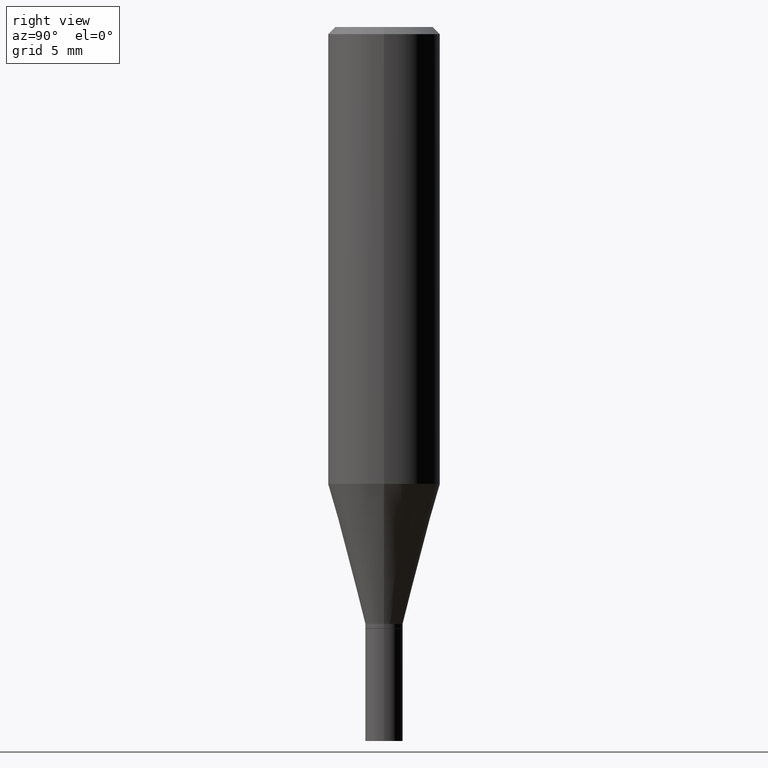
[diagram: clean part render]
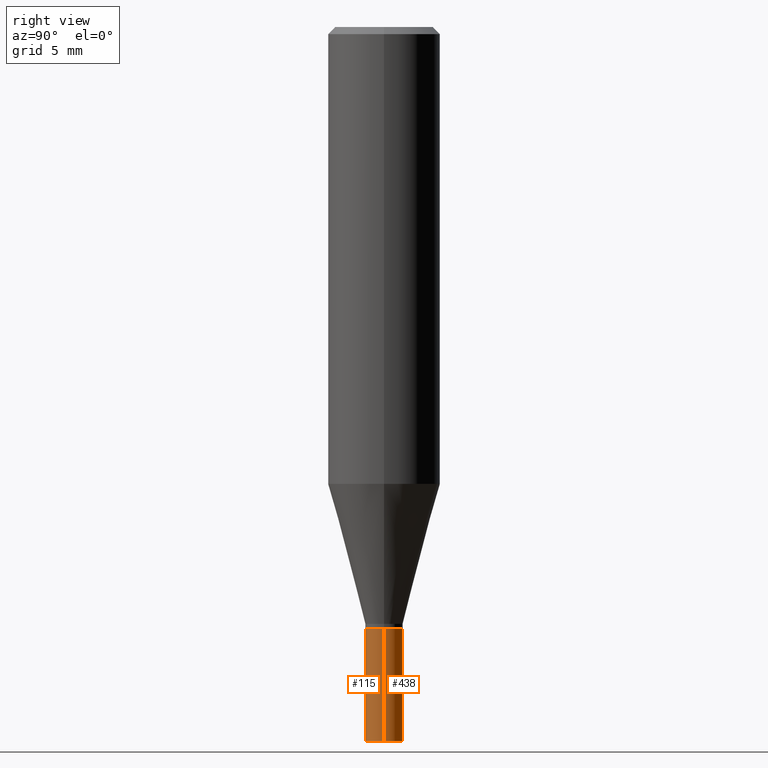
[diagram: same view with one multi-face feature highlighted, each face labeled with its STEP entity id]
A machine part, right view. The highlighted faces form ONE feature: a constant-radius fillet chain: 2 tangent blend faces with common blend radius 0.9995 mm. The faces share edges in the B-rep.
Their STEP definitions:
[1] entity #438 (Cylinder):
#26 = VECTOR ( 'NONE', #331, 39.37007874015748143 ) ;
#28 = EDGE_CURVE ( 'NONE', #131, #389, #71, .T. ) ;
#30 = DIRECTION ( 'NONE',  ( -2.445468806185136597E-29, 3.491481338843145583E-15, 1.000000000000000000 ) ) ;
#41 = CARTESIAN_POINT ( 'NONE',  ( 0.03935000000000000303, -4.687313697396922464E-15, -1.263800000000000034 ) ) ;
#45 = CARTESIAN_POINT ( 'NONE',  ( -0.03935000000000000303, -4.545279495625743861E-15, -1.500000000000000222 ) ) ;
#50 = LINE ( 'NONE', #231, #26 ) ;
#61 = CARTESIAN_POINT ( 'NONE',  ( 0.000000000000000000, 0.000000000000000000, 0.000000000000000000 ) ) ;
#62 = AXIS2_PLACEMENT_3D ( 'NONE', #194, #269, #302 ) ;
#71 = LINE ( 'NONE', #441, #283 ) ;
#73 = DIRECTION ( 'NONE',  ( -2.445468806185136877E-29, 3.491481338843145188E-15, 1.000000000000000000 ) ) ;
#107 = CIRCLE ( 'NONE', #62, 0.03935000000000000303 ) ;
#113 = AXIS2_PLACEMENT_3D ( 'NONE', #170, #314, #139 ) ;
#119 = VERTEX_POINT ( 'NONE', #227 ) ;
#131 = VERTEX_POINT ( 'NONE', #45 ) ;
#136 = DIRECTION ( 'NONE',  ( 1.000000000000000000, -6.982962677686266711E-15, 4.876176775795936353E-29 ) ) ;
#139 = DIRECTION ( 'NONE',  ( 1.000000000000000000, -6.982962677686269077E-15, 0.000000000000000000 ) ) ;
#140 = VERTEX_POINT ( 'NONE', #41 ) ;
#148 = ORIENTED_EDGE ( 'NONE', *, *, #295, .T. ) ;
#170 = CARTESIAN_POINT ( 'NONE',  ( 3.090583477256776013E-29, -4.412534116029967548E-15, -1.263800000000000034 ) ) ;
#193 = EDGE_CURVE ( 'NONE', #140, #389, #323, .T. ) ;
#194 = CARTESIAN_POINT ( 'NONE',  ( 3.668203209277704895E-29, -5.237222008264718177E-15, -1.500000000000000222 ) ) ;
#227 = CARTESIAN_POINT ( 'NONE',  ( 0.03935000000000000303, -5.512001589631673094E-15, -1.500000000000000222 ) ) ;
#231 = CARTESIAN_POINT ( 'NONE',  ( 0.03935000000000000303, -2.747795813669546211E-16, 1.918775561275701074E-30 ) ) ;
#269 = DIRECTION ( 'NONE',  ( -2.445468806185136597E-29, 3.491481338843145583E-15, 1.000000000000000000 ) ) ;
#276 = FACE_OUTER_BOUND ( 'NONE', #308, .T. ) ;
#283 = VECTOR ( 'NONE', #73, 39.37007874015748143 ) ;
#295 = EDGE_CURVE ( 'NONE', #119, #131, #107, .T. ) ;
#296 = ORIENTED_EDGE ( 'NONE', *, *, #376, .F. ) ;
#302 = DIRECTION ( 'NONE',  ( 1.000000000000000000, -6.982962677686269077E-15, 0.000000000000000000 ) ) ;
#308 = EDGE_LOOP ( 'NONE', ( #148, #461, #410, #296 ) ) ;
#314 = DIRECTION ( 'NONE',  ( -2.445468806185136597E-29, 3.491481338843145583E-15, 1.000000000000000000 ) ) ;
#323 = CIRCLE ( 'NONE', #113, 0.03935000000000000303 ) ;
#331 = DIRECTION ( 'NONE',  ( -2.445468806185136877E-29, 3.491481338843145188E-15, 1.000000000000000000 ) ) ;
#332 = AXIS2_PLACEMENT_3D ( 'NONE', #61, #30, #136 ) ;
#376 = EDGE_CURVE ( 'NONE', #119, #140, #50, .T. ) ;
#389 = VERTEX_POINT ( 'NONE', #449 ) ;
#410 = ORIENTED_EDGE ( 'NONE', *, *, #193, .F. ) ;
#438 = ADVANCED_FACE ( 'NONE', ( #276 ), #465, .T. ) ;
#441 = CARTESIAN_POINT ( 'NONE',  ( -0.03935000000000000303, 2.795985665215994447E-16, -1.935600958015305291E-30 ) ) ;
#449 = CARTESIAN_POINT ( 'NONE',  ( -0.03935000000000000303, -4.545279495625743861E-15, -1.263800000000000034 ) ) ;
#461 = ORIENTED_EDGE ( 'NONE', *, *, #28, .T. ) ;
#465 = CYLINDRICAL_SURFACE ( 'NONE', #332, 0.03935000000000000303 ) ;
[2] entity #115 (Cylinder):
#16 = CIRCLE ( 'NONE', #329, 0.03935000000000000303 ) ;
#26 = VECTOR ( 'NONE', #331, 39.37007874015748143 ) ;
#28 = EDGE_CURVE ( 'NONE', #131, #389, #71, .T. ) ;
#41 = CARTESIAN_POINT ( 'NONE',  ( 0.03935000000000000303, -4.687313697396922464E-15, -1.263800000000000034 ) ) ;
#45 = CARTESIAN_POINT ( 'NONE',  ( -0.03935000000000000303, -4.545279495625743861E-15, -1.500000000000000222 ) ) ;
#49 = ORIENTED_EDGE ( 'NONE', *, *, #172, .F. ) ;
#50 = LINE ( 'NONE', #231, #26 ) ;
#71 = LINE ( 'NONE', #441, #283 ) ;
#73 = DIRECTION ( 'NONE',  ( -2.445468806185136877E-29, 3.491481338843145188E-15, 1.000000000000000000 ) ) ;
#100 = DIRECTION ( 'NONE',  ( -2.445468806185136597E-29, 3.491481338843145583E-15, 1.000000000000000000 ) ) ;
#114 = CARTESIAN_POINT ( 'NONE',  ( 0.000000000000000000, 0.000000000000000000, 0.000000000000000000 ) ) ;
#115 = ADVANCED_FACE ( 'NONE', ( #359 ), #213, .T. ) ;
#118 = DIRECTION ( 'NONE',  ( 1.000000000000000000, -6.982962677686269077E-15, 0.000000000000000000 ) ) ;
#119 = VERTEX_POINT ( 'NONE', #227 ) ;
#125 = DIRECTION ( 'NONE',  ( -2.445468806185136597E-29, 3.491481338843145583E-15, 1.000000000000000000 ) ) ;
#131 = VERTEX_POINT ( 'NONE', #45 ) ;
#140 = VERTEX_POINT ( 'NONE', #41 ) ;
#141 = CARTESIAN_POINT ( 'NONE',  ( 3.090583477256776013E-29, -4.412534116029967548E-15, -1.263800000000000034 ) ) ;
#172 = EDGE_CURVE ( 'NONE', #389, #140, #339, .T. ) ;
#180 = ORIENTED_EDGE ( 'NONE', *, *, #376, .T. ) ;
#195 = AXIS2_PLACEMENT_3D ( 'NONE', #114, #100, #433 ) ;
#213 = CYLINDRICAL_SURFACE ( 'NONE', #195, 0.03935000000000000303 ) ;
#227 = CARTESIAN_POINT ( 'NONE',  ( 0.03935000000000000303, -5.512001589631673094E-15, -1.500000000000000222 ) ) ;
#231 = CARTESIAN_POINT ( 'NONE',  ( 0.03935000000000000303, -2.747795813669546211E-16, 1.918775561275701074E-30 ) ) ;
#251 = EDGE_CURVE ( 'NONE', #131, #119, #16, .T. ) ;
#258 = ORIENTED_EDGE ( 'NONE', *, *, #28, .F. ) ;
#267 = CARTESIAN_POINT ( 'NONE',  ( 3.668203209277704895E-29, -5.237222008264718177E-15, -1.500000000000000222 ) ) ;
#283 = VECTOR ( 'NONE', #73, 39.37007874015748143 ) ;
#284 = DIRECTION ( 'NONE',  ( -2.445468806185136597E-29, 3.491481338843145583E-15, 1.000000000000000000 ) ) ;
#324 = EDGE_LOOP ( 'NONE', ( #258, #330, #180, #49 ) ) ;
#329 = AXIS2_PLACEMENT_3D ( 'NONE', #267, #125, #336 ) ;
#330 = ORIENTED_EDGE ( 'NONE', *, *, #251, .T. ) ;
#331 = DIRECTION ( 'NONE',  ( -2.445468806185136877E-29, 3.491481338843145188E-15, 1.000000000000000000 ) ) ;
#336 = DIRECTION ( 'NONE',  ( 1.000000000000000000, -6.982962677686269077E-15, 0.000000000000000000 ) ) ;
#339 = CIRCLE ( 'NONE', #348, 0.03935000000000000303 ) ;
#348 = AXIS2_PLACEMENT_3D ( 'NONE', #141, #284, #118 ) ;
#359 = FACE_OUTER_BOUND ( 'NONE', #324, .T. ) ;
#376 = EDGE_CURVE ( 'NONE', #119, #140, #50, .T. ) ;
#389 = VERTEX_POINT ( 'NONE', #449 ) ;
#433 = DIRECTION ( 'NONE',  ( 1.000000000000000000, -6.982962677686266711E-15, 4.876176775795936353E-29 ) ) ;
#441 = CARTESIAN_POINT ( 'NONE',  ( -0.03935000000000000303, 2.795985665215994447E-16, -1.935600958015305291E-30 ) ) ;
#449 = CARTESIAN_POINT ( 'NONE',  ( -0.03935000000000000303, -4.545279495625743861E-15, -1.263800000000000034 ) ) ;